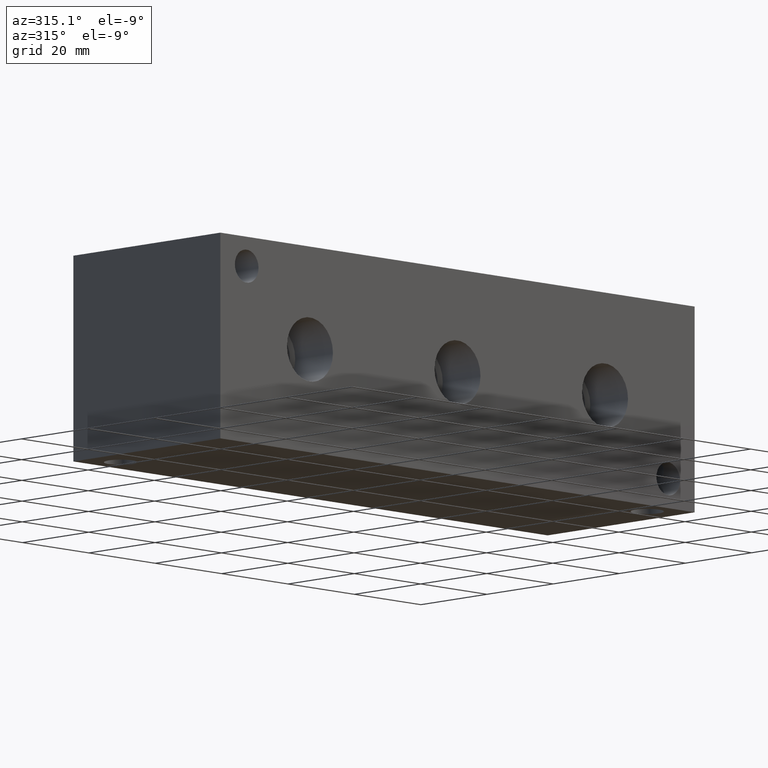
[diagram: clean part render]
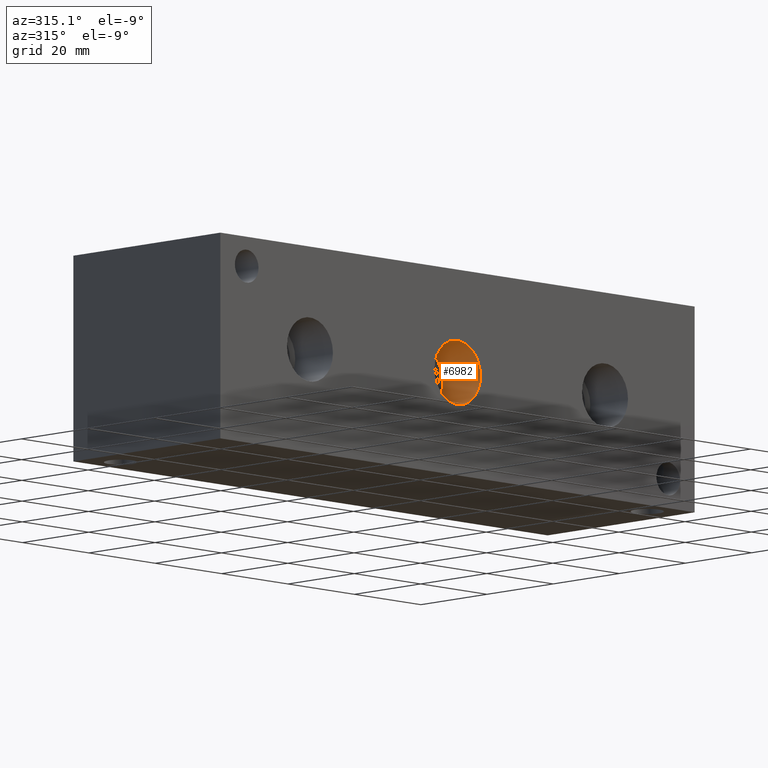
[diagram: same view with one face highlighted and labeled with its STEP entity id]
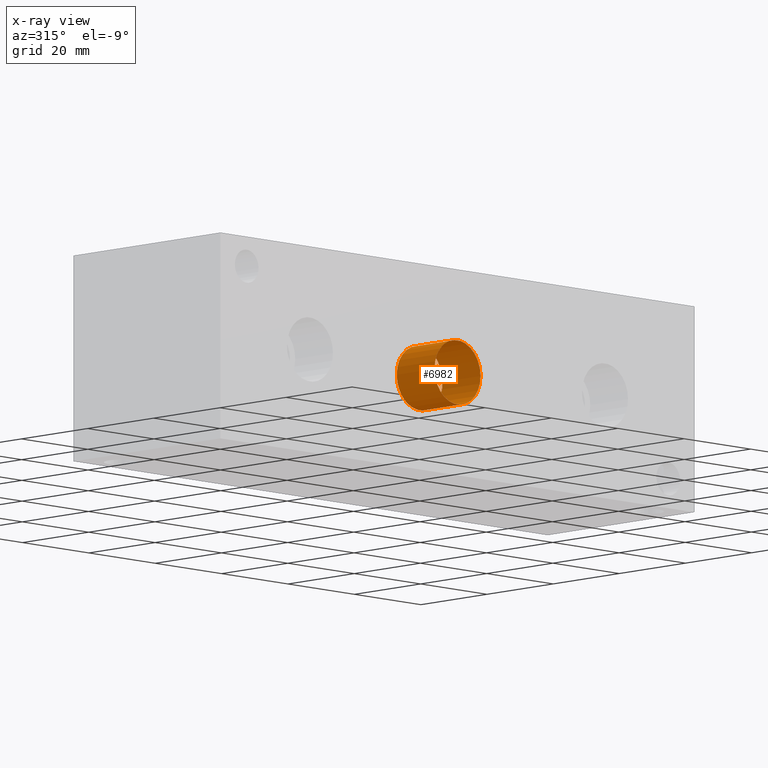
[diagram: x-ray of the same camera — body ghosted, the highlighted face saturated]
A machine part, auxiliary view. The second image highlights one B-rep face of the part: STEP entity #6982.
The next image is the same camera in x-ray: the body ghosted, the highlighted face saturated — about 0% of this face is hidden behind the body in this view.
In plain terms, the highlighted cylindrical surface (bore or boss wall) has radius 6.9342 mm, axis along (0, -1, 0).
Its self-contained STEP definition (entity closure, byte-faithful):
#36=CYLINDRICAL_SURFACE('',#7274,6.9342);
#68=CIRCLE('',#7271,6.9342);
#69=CIRCLE('',#7272,6.9342);
#71=CIRCLE('',#7275,6.9342);
#72=CIRCLE('',#7276,6.9342);
#698=FACE_OUTER_BOUND('',#1087,.T.);
#1087=EDGE_LOOP('',(#6104,#6105,#6106,#6107,#6108,#6109));
#1789=LINE('',#11872,#2474);
#2474=VECTOR('',#8501,6.9342);
#3316=VERTEX_POINT('',#11861);
#3317=VERTEX_POINT('',#11862);
#3319=VERTEX_POINT('',#11868);
#3320=VERTEX_POINT('',#11869);
#4261=EDGE_CURVE('',#3316,#3317,#68,.T.);
#4262=EDGE_CURVE('',#3317,#3316,#69,.T.);
#4264=EDGE_CURVE('',#3319,#3320,#71,.T.);
#4265=EDGE_CURVE('',#3320,#3319,#72,.T.);
#4266=EDGE_CURVE('',#3320,#3317,#1789,.T.);
#6104=ORIENTED_EDGE('',*,*,#4264,.F.);
#6105=ORIENTED_EDGE('',*,*,#4265,.F.);
#6106=ORIENTED_EDGE('',*,*,#4266,.T.);
#6107=ORIENTED_EDGE('',*,*,#4261,.F.);
#6108=ORIENTED_EDGE('',*,*,#4262,.F.);
#6109=ORIENTED_EDGE('',*,*,#4266,.F.);
#6982=ADVANCED_FACE('',(#698),#36,.F.);
#7271=AXIS2_PLACEMENT_3D('',#11863,#8489,#8490);
#7272=AXIS2_PLACEMENT_3D('',#11864,#8491,#8492);
#7274=AXIS2_PLACEMENT_3D('',#11867,#8495,#8496);
#7275=AXIS2_PLACEMENT_3D('',#11870,#8497,#8498);
#7276=AXIS2_PLACEMENT_3D('',#11871,#8499,#8500);
#8489=DIRECTION('center_axis',(0.,-1.,0.));
#8490=DIRECTION('ref_axis',(1.,0.,0.));
#8491=DIRECTION('center_axis',(0.,-1.,0.));
#8492=DIRECTION('ref_axis',(1.,0.,0.));
#8495=DIRECTION('center_axis',(0.,-1.,0.));
#8496=DIRECTION('ref_axis',(1.,0.,0.));
#8497=DIRECTION('center_axis',(0.,1.,0.));
#8498=DIRECTION('ref_axis',(1.,0.,0.));
#8499=DIRECTION('center_axis',(0.,1.,0.));
#8500=DIRECTION('ref_axis',(1.,0.,0.));
#8501=DIRECTION('',(0.,1.,0.));
#11861=CARTESIAN_POINT('',(78.359,11.4046,22.225));
#11862=CARTESIAN_POINT('',(64.4906,11.4046,22.225));
#11863=CARTESIAN_POINT('Origin',(71.4248,11.4046,22.225));
#11864=CARTESIAN_POINT('Origin',(71.4248,11.4046,22.225));
#11867=CARTESIAN_POINT('Origin',(71.4248,5.7023,22.225));
#11868=CARTESIAN_POINT('',(78.359,0.,22.225));
#11869=CARTESIAN_POINT('',(64.4906,0.,22.225));
#11870=CARTESIAN_POINT('Origin',(71.4248,0.,22.225));
#11871=CARTESIAN_POINT('Origin',(71.4248,0.,22.225));
#11872=CARTESIAN_POINT('',(64.4906,5.7023,22.225));